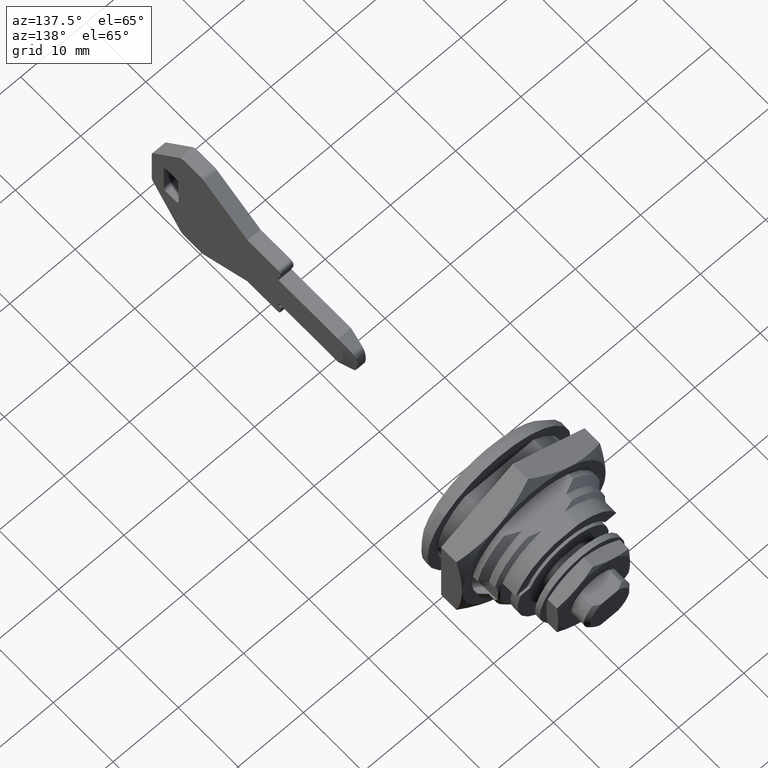
[diagram: clean part render]
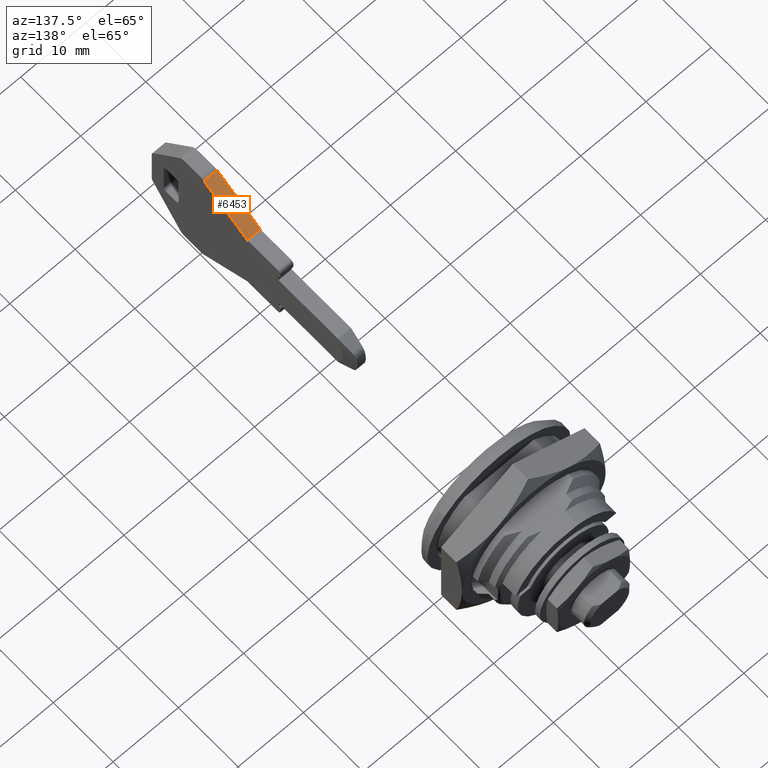
[diagram: same view with one face highlighted and labeled with its STEP entity id]
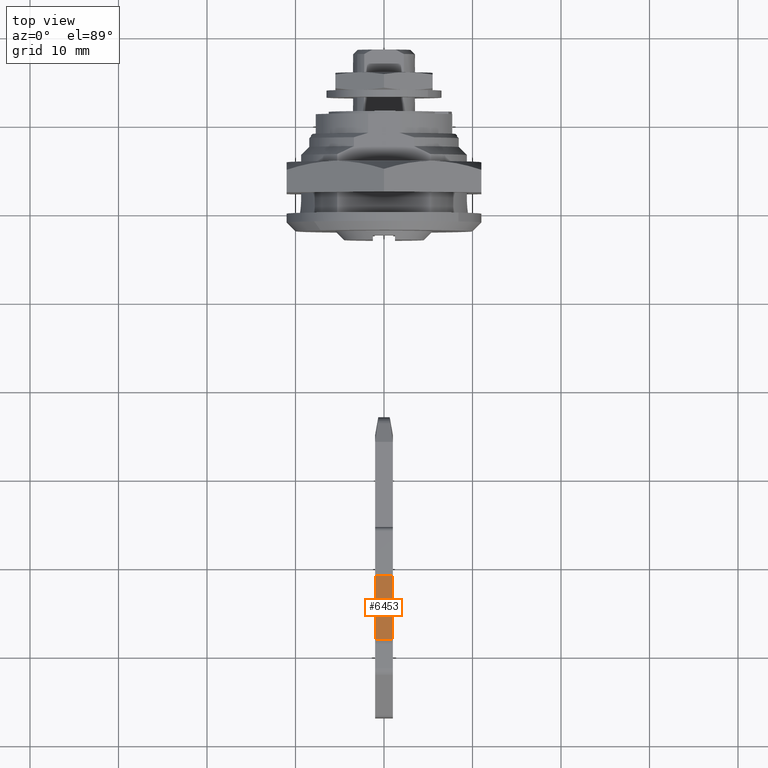
[diagram: same view with one face highlighted and labeled with its STEP entity id]
A machine part, auxiliary view. The second image highlights one B-rep face of the part: STEP entity #6453.
A second angle (top view) of the same face is appended — the face is thin or edge-on in the first view.
In plain terms, the highlighted face is a freeform B-spline surface patch.
Its self-contained STEP definition (entity closure, byte-faithful):
#6403=CARTESIAN_POINT('',(-41.0,-1.0,5.500000000000000));
#6404=VERTEX_POINT('',#6403);
#6411=CARTESIAN_POINT('',(-41.0,1.0,5.500000000000000));
#6412=VERTEX_POINT('',#6411);
#6418=CARTESIAN_POINT('',(-41.0,1.0,5.500000000000000));
#6419=CARTESIAN_POINT('',(-41.0,-1.0,5.500000000000000));
#6420=QUASI_UNIFORM_CURVE('',1,(#6418,#6419),.UNSPECIFIED.,.F.,.U.);
#6421=EDGE_CURVE('',#6412,#6404,#6420,.T.);
#6426=CARTESIAN_POINT('',(-40.637238114556510,-1.099899996123612,5.282317893733120));
#6427=CARTESIAN_POINT('',(-48.625262571122732,-1.099899996123612,10.075682517721591));
#6428=CARTESIAN_POINT('',(-40.637238114556517,1.099900049767792,5.282317893733120));
#6429=CARTESIAN_POINT('',(-48.625262571122732,1.099900049767792,10.075682517721591));
#6430=B_SPLINE_SURFACE_WITH_KNOTS('',1,1,((#6426,#6428),(#6427,#6429)),.UNSPECIFIED.,.F.,.F.,.U.,(2,2),(2,2),(0.0,9.315840227118759),(0.0,2.199800045891404),.UNSPECIFIED.);
#6431=CARTESIAN_POINT('',(-48.262499971429300,-1.0,9.857999982855640));
#6432=VERTEX_POINT('',#6431);
#6433=CARTESIAN_POINT('',(-48.262499971429300,-1.0,9.857999982855640));
#6434=CARTESIAN_POINT('',(-41.0,-1.0,5.500000000000000));
#6435=QUASI_UNIFORM_CURVE('',1,(#6433,#6434),.UNSPECIFIED.,.F.,.U.);
#6436=EDGE_CURVE('',#6432,#6404,#6435,.T.);
#6437=ORIENTED_EDGE('',*,*,#6436,.T.);
#6438=ORIENTED_EDGE('',*,*,#6421,.F.);
#6439=CARTESIAN_POINT('',(-48.262499971429300,1.0,9.857999982855640));
#6440=VERTEX_POINT('',#6439);
#6441=CARTESIAN_POINT('',(-48.262499971429300,1.0,9.857999982855640));
#6442=CARTESIAN_POINT('',(-41.0,1.0,5.500000000000000));
#6443=QUASI_UNIFORM_CURVE('',1,(#6441,#6442),.UNSPECIFIED.,.F.,.U.);
#6444=EDGE_CURVE('',#6440,#6412,#6443,.T.);
#6445=ORIENTED_EDGE('',*,*,#6444,.F.);
#6446=CARTESIAN_POINT('',(-48.262499971429300,1.0,9.857999982855640));
#6447=CARTESIAN_POINT('',(-48.262499971429300,-1.0,9.857999982855640));
#6448=QUASI_UNIFORM_CURVE('',1,(#6446,#6447),.UNSPECIFIED.,.F.,.U.);
#6449=EDGE_CURVE('',#6440,#6432,#6448,.T.);
#6450=ORIENTED_EDGE('',*,*,#6449,.T.);
#6451=EDGE_LOOP('',(#6437,#6438,#6445,#6450));
#6452=FACE_OUTER_BOUND('',#6451,.T.);
#6453=ADVANCED_FACE('',(#6452),#6430,.F.);